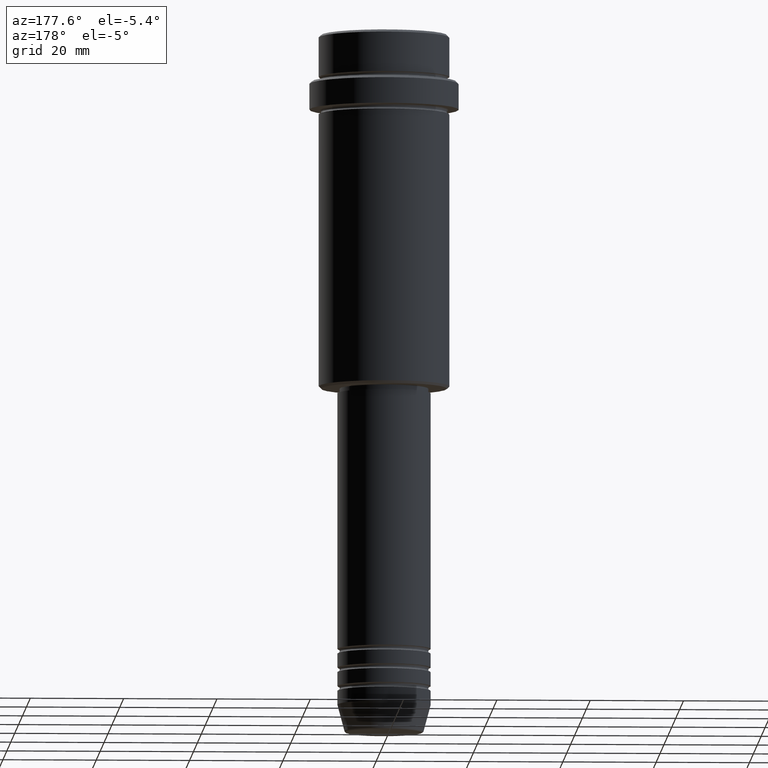
[diagram: clean part render]
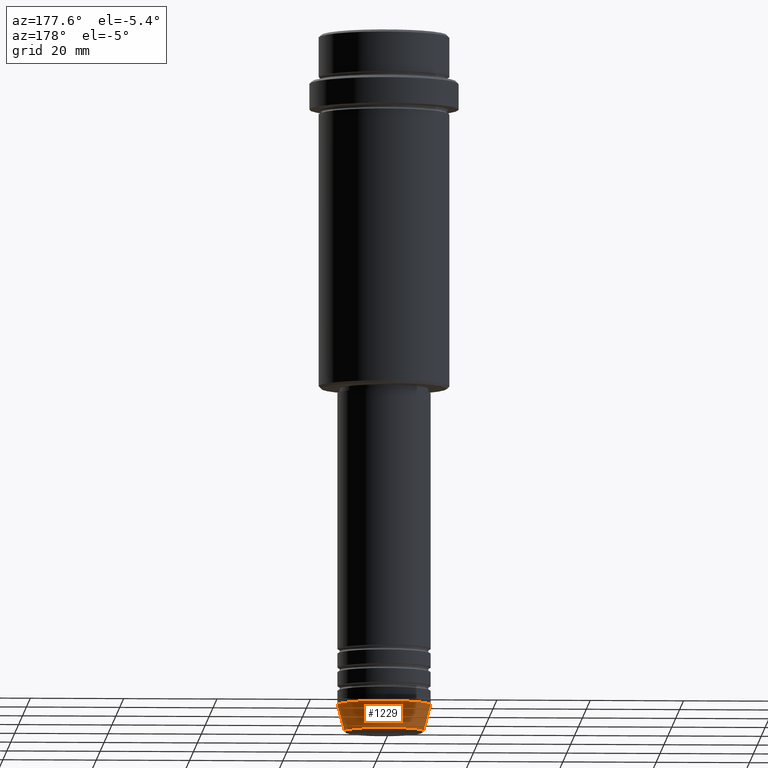
[diagram: same view with one face highlighted and labeled with its STEP entity id]
A machine part, auxiliary view. The second image highlights one B-rep face of the part: STEP entity #1229.
In plain terms, the highlighted conical surface has half-angle 15 deg.
Its self-contained STEP definition (entity closure, byte-faithful):
#3 = CARTESIAN_POINT ( 'NONE',  ( -10.00000000000000000, 1.224646799147353256E-15, -144.0000000000000284 ) ) ;
#19 = ORIENTED_EDGE ( 'NONE', *, *, #1387, .F. ) ;
#25 = CARTESIAN_POINT ( 'NONE',  ( 0.000000000000000000, 0.000000000000000000, -144.0000000000000284 ) ) ;
#63 = DIRECTION ( 'NONE',  ( 0.2588190451025211281, 0.000000000000000000, 0.9659258262890680902 ) ) ;
#69 = CARTESIAN_POINT ( 'NONE',  ( 8.491604264568309191, 0.000000000000000000, -149.6294095225512990 ) ) ;
#91 = ORIENTED_EDGE ( 'NONE', *, *, #1118, .F. ) ;
#93 = ORIENTED_EDGE ( 'NONE', *, *, #809, .T. ) ;
#203 = DIRECTION ( 'NONE',  ( -0.000000000000000000, -0.000000000000000000, 1.000000000000000000 ) ) ;
#219 = AXIS2_PLACEMENT_3D ( 'NONE', #25, #899, #682 ) ;
#272 = DIRECTION ( 'NONE',  ( -0.000000000000000000, -0.000000000000000000, 1.000000000000000000 ) ) ;
#324 = CIRCLE ( 'NONE', #219, 10.00000000000000000 ) ;
#425 = ORIENTED_EDGE ( 'NONE', *, *, #570, .T. ) ;
#427 = CARTESIAN_POINT ( 'NONE',  ( -8.491604264568309191, 1.132284198685156387E-15, -149.6294095225512990 ) ) ;
#509 = EDGE_LOOP ( 'NONE', ( #425, #93, #19, #91 ) ) ;
#544 = LINE ( 'NONE', #675, #577 ) ;
#558 = AXIS2_PLACEMENT_3D ( 'NONE', #1299, #203, #1399 ) ;
#570 = EDGE_CURVE ( 'NONE', #1042, #812, #925, .T. ) ;
#577 = VECTOR ( 'NONE', #1412, 1000.000000000000114 ) ;
#608 = LINE ( 'NONE', #1044, #994 ) ;
#675 = CARTESIAN_POINT ( 'NONE',  ( -10.00000000000000000, 1.224646799147353256E-15, -144.0000000000000284 ) ) ;
#681 = VERTEX_POINT ( 'NONE', #3 ) ;
#682 = DIRECTION ( 'NONE',  ( 1.000000000000000000, 0.000000000000000000, 0.000000000000000000 ) ) ;
#809 = EDGE_CURVE ( 'NONE', #812, #681, #544, .T. ) ;
#812 = VERTEX_POINT ( 'NONE', #427 ) ;
#832 = VERTEX_POINT ( 'NONE', #900 ) ;
#899 = DIRECTION ( 'NONE',  ( -0.000000000000000000, -0.000000000000000000, 1.000000000000000000 ) ) ;
#900 = CARTESIAN_POINT ( 'NONE',  ( 10.00000000000000000, 0.000000000000000000, -144.0000000000000284 ) ) ;
#925 = CIRCLE ( 'NONE', #1329, 8.491604264568309191 ) ;
#947 = DIRECTION ( 'NONE',  ( 1.000000000000000000, 0.000000000000000000, 0.000000000000000000 ) ) ;
#994 = VECTOR ( 'NONE', #63, 1000.000000000000114 ) ;
#1042 = VERTEX_POINT ( 'NONE', #69 ) ;
#1044 = CARTESIAN_POINT ( 'NONE',  ( 10.00000000000000000, 0.000000000000000000, -144.0000000000000284 ) ) ;
#1118 = EDGE_CURVE ( 'NONE', #1042, #832, #608, .T. ) ;
#1176 = CONICAL_SURFACE ( 'NONE', #558, 10.00000000000000000, 0.2617993877991498519 ) ;
#1229 = ADVANCED_FACE ( 'NONE', ( #1308 ), #1176, .T. ) ;
#1299 = CARTESIAN_POINT ( 'NONE',  ( 0.000000000000000000, 0.000000000000000000, -144.0000000000000284 ) ) ;
#1308 = FACE_OUTER_BOUND ( 'NONE', #509, .T. ) ;
#1329 = AXIS2_PLACEMENT_3D ( 'NONE', #1390, #272, #947 ) ;
#1387 = EDGE_CURVE ( 'NONE', #832, #681, #324, .T. ) ;
#1390 = CARTESIAN_POINT ( 'NONE',  ( 0.000000000000000000, 0.000000000000000000, -149.6294095225512990 ) ) ;
#1399 = DIRECTION ( 'NONE',  ( 1.000000000000000000, 0.000000000000000000, 0.000000000000000000 ) ) ;
#1412 = DIRECTION ( 'NONE',  ( -0.2588190451025211281, 3.169619151431769872E-17, 0.9659258262890680902 ) ) ;